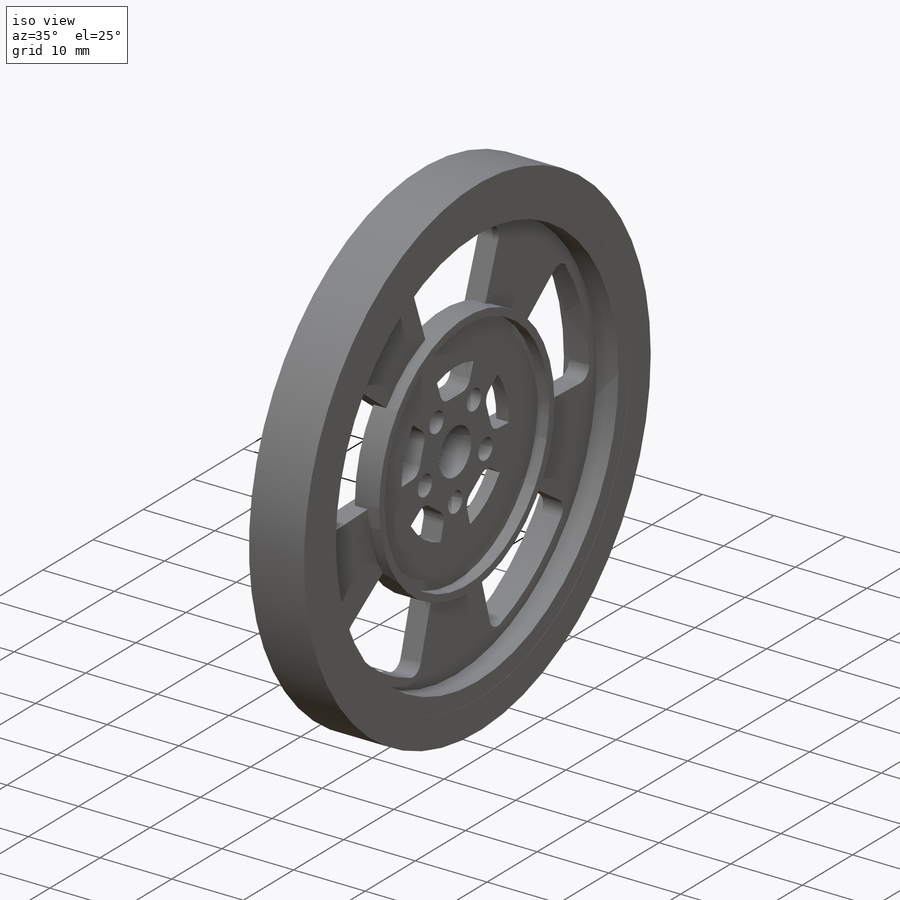
[diagram: iso view]
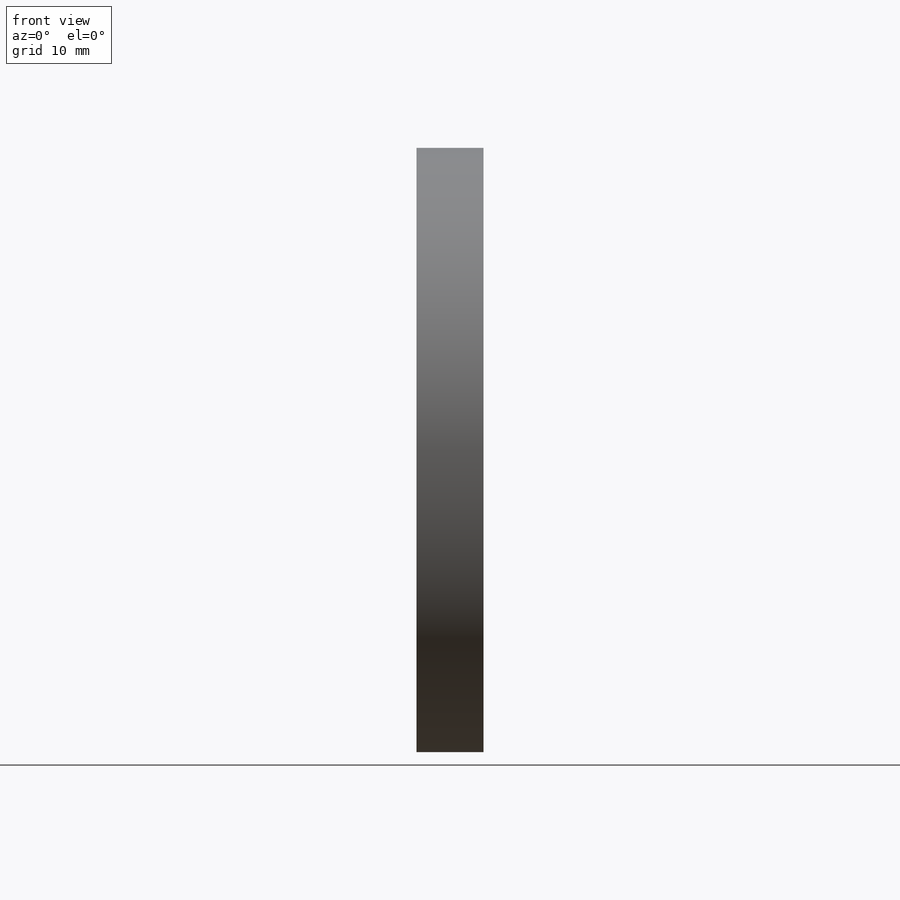
[diagram: front view]
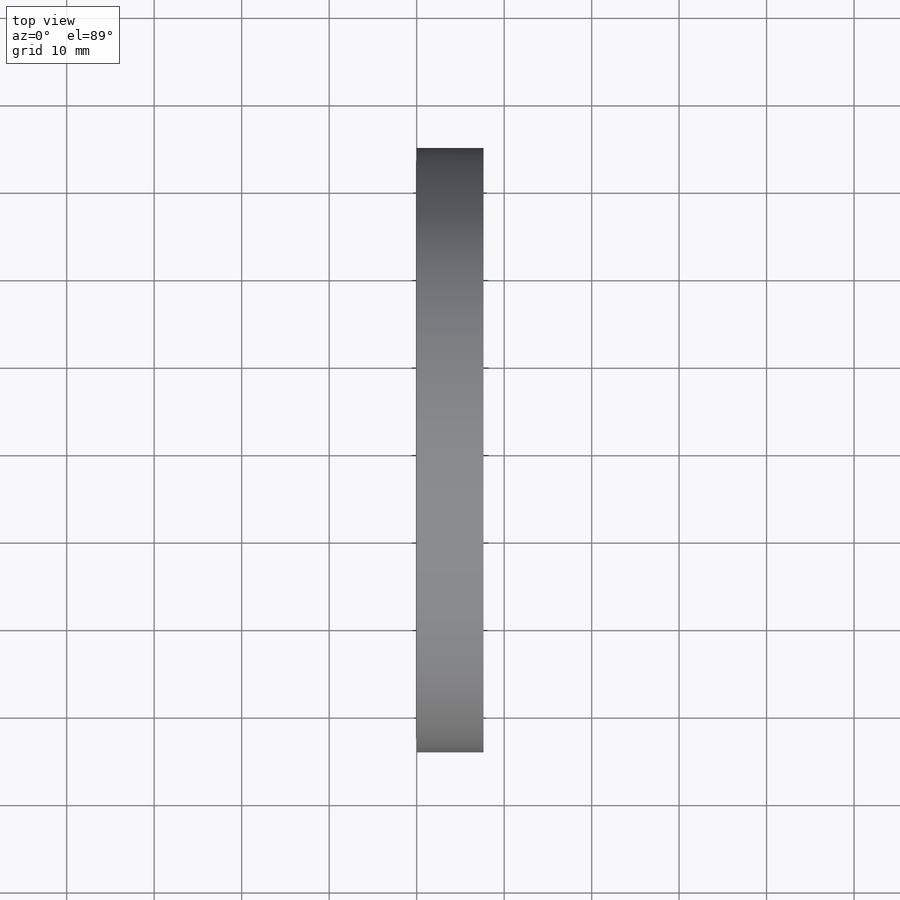
[diagram: top view]
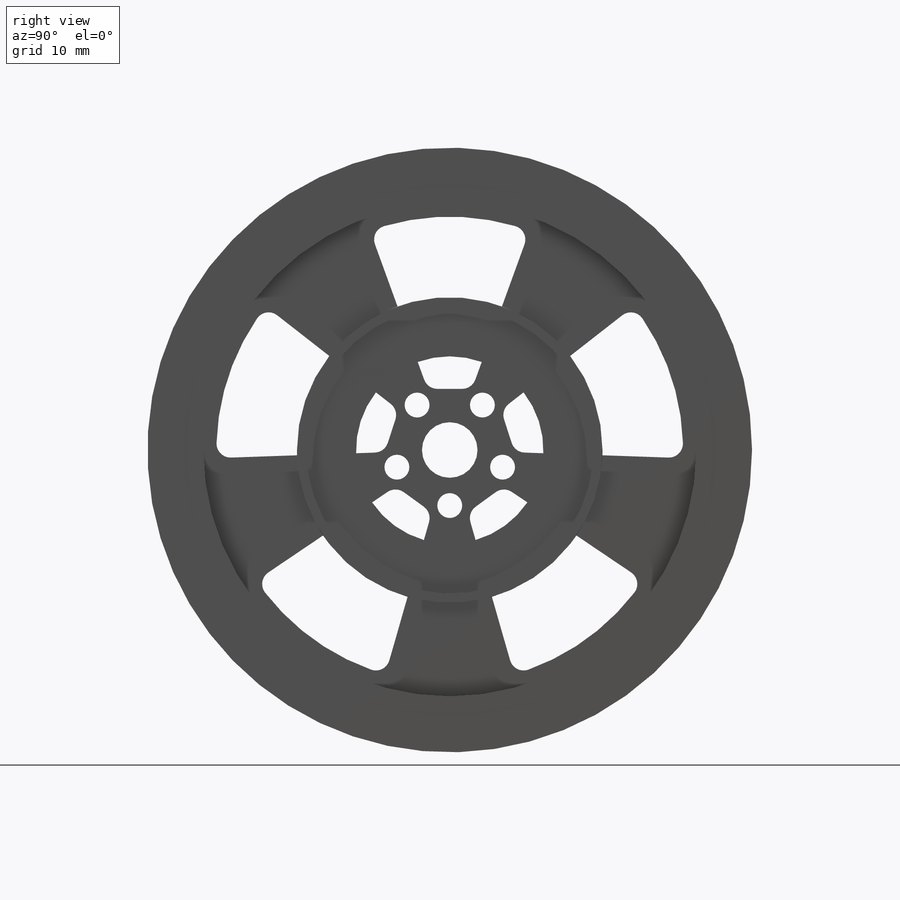
[diagram: right view]
SOLIDWORKS PART (.sldprt)
format: sldprt  version: not decoded by parser v0  size: 355,840 bytes
history: native  units: mm
features: sketch x9, cut_extrude x5, extrude x4, pattern_circular x2, material x1, fillet x1 (+17 scaffold rows collapsed)
feature tree (39):
  scaffold x17  (default folders/planes/origin — collapsed)
  material  "Material <not specified>"
  sketch  "Sketch1"  dims[D1=69.088mm]
  extrude  "Boss-Extrude1"  Depth=7.62mm
  sketch  "Sketch2"  dims[D1=56.3372mm D2=9.8552mm]
  cut_extrude  "Cut-Extrude1"  Depth=3.048mm
  sketch  "Sketch3"  dims[D1=56.3372mm D2=8.7376mm]
  cut_extrude  "Cut-Extrude2"  Depth=1.778mm
  sketch  "Sketch4"  dims[D3=26.67mm D1=5.08mm D2=6.985mm]
  cut_extrude  "Cut-Extrude3"  [1 undecoded]
  fillet  "Fillet1"  Radius=1.6002mm
  pattern_circular  "CirPattern1"  Count=5 Angle=360deg
  sketch  "Sketch5"  dims[D1=34.925mm D2=21.4122mm]
  extrude  "Boss-Extrude2"  Depth=1.778mm
  sketch  "Sketch6"  dims[D1=34.925mm D2=1.0414mm]
  extrude  "Boss-Extrude4"  Depth=1.6002mm
  sketch  "Sketch7"  dims[D1=6.35mm]
  cut_extrude  "Cut-Extrude4"  [1 undecoded]
  sketch  "Sketch8"  dims[D1=2.8448mm D2=6.35mm]
  cut_extrude  "Cut-Extrude5"  [1 undecoded]
  pattern_circular  "CirPattern2"  Count=5 Angle=360deg
  sketch  "Sketch9"  dims[D1=69.1134mm D2=60.833mm]
  extrude  "Boss-Extrude5"  Depth=0.0254mm
decode coverage: 18 of 21 modeling features carry decoded parameters
note: 3 parameter values undecoded
summary: no parameter record found for 3 features
note: suppression state not decoded; provenance and decode notes live in map.json
